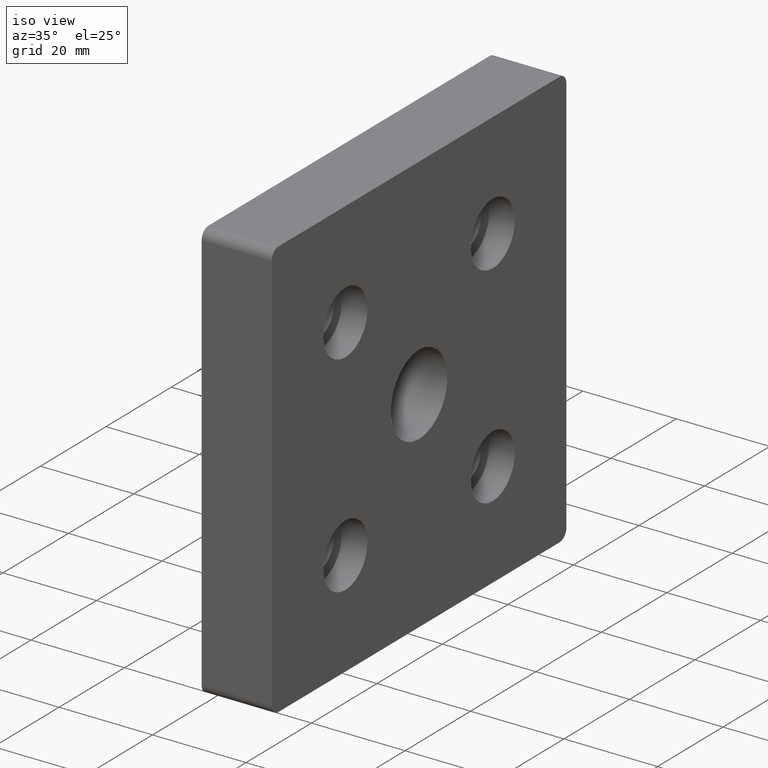
[diagram: clean part render]
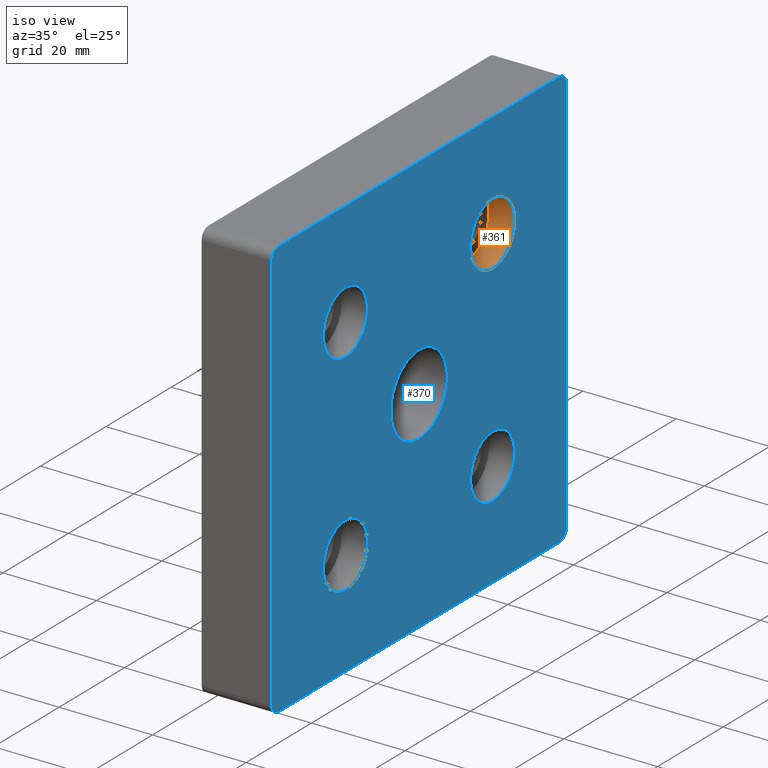
[diagram: same view with the hole feature highlighted: cylindrical wall and planar end face, labeled with their STEP entity ids]
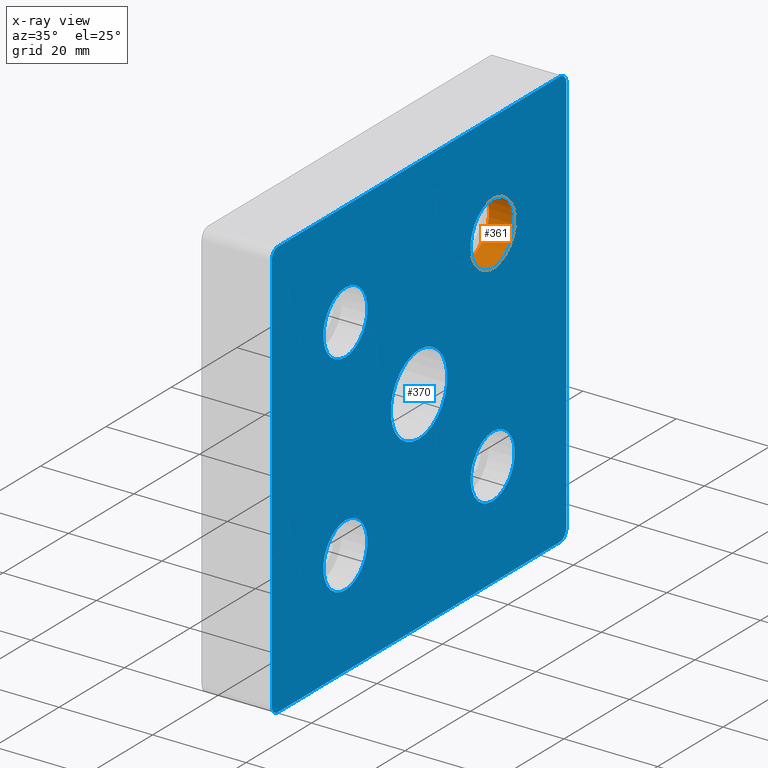
[diagram: x-ray of the same camera — body ghosted, the hole faces saturated]
A machine part, iso view. The highlighted faces form one hole feature of diameter 13.5 mm: the cylindrical wall (entity #361, orange) and its adjacent planar end face (entity #370, blue) — they share a circular edge in the B-rep.
The next image is the same camera in x-ray (body ghosted, the hole faces saturated) — the bore reads through the body.
Wall:
#25=FACE_BOUND('',#95,.T.);
#61=FACE_OUTER_BOUND('',#94,.T.);
#94=EDGE_LOOP('',(#302));
#95=EDGE_LOOP('',(#303));
#166=CIRCLE('',#403,6.75);
#168=CIRCLE('',#406,6.75);
#200=VERTEX_POINT('',#609);
#202=VERTEX_POINT('',#614);
#241=EDGE_CURVE('',#200,#200,#166,.T.);
#243=EDGE_CURVE('',#202,#202,#168,.T.);
#302=ORIENTED_EDGE('',*,*,#243,.F.);
#303=ORIENTED_EDGE('',*,*,#241,.F.);
#342=CYLINDRICAL_SURFACE('',#405,6.75);
#361=ADVANCED_FACE('',(#61,#25),#342,.F.);
#403=AXIS2_PLACEMENT_3D('',#610,#499,#500);
#405=AXIS2_PLACEMENT_3D('',#613,#503,#504);
#406=AXIS2_PLACEMENT_3D('',#615,#505,#506);
#499=DIRECTION('center_axis',(1.,0.,0.));
#500=DIRECTION('ref_axis',(0.,0.,-1.));
#503=DIRECTION('center_axis',(1.,0.,0.));
#504=DIRECTION('ref_axis',(0.,0.,-1.));
#505=DIRECTION('center_axis',(-1.,0.,0.));
#506=DIRECTION('ref_axis',(0.,0.,-1.));
#609=CARTESIAN_POINT('',(9.5,22.5,15.75));
#610=CARTESIAN_POINT('Origin',(9.5,22.5,22.5));
#613=CARTESIAN_POINT('Origin',(12.25,22.5,22.5));
#614=CARTESIAN_POINT('',(15.,22.5,15.75));
#615=CARTESIAN_POINT('Origin',(15.,22.5,22.5));
End face:
#33=FACE_BOUND('',#112,.T.);
#34=FACE_BOUND('',#113,.T.);
#35=FACE_BOUND('',#114,.T.);
#36=FACE_BOUND('',#115,.T.);
#37=FACE_BOUND('',#116,.T.);
#47=PLANE('',#421);
#70=FACE_OUTER_BOUND('',#111,.T.);
#111=EDGE_LOOP('',(#322,#323,#324,#325,#326,#327,#328,#329));
#112=EDGE_LOOP('',(#330));
#113=EDGE_LOOP('',(#331));
#114=EDGE_LOOP('',(#332));
#115=EDGE_LOOP('',(#333));
#116=EDGE_LOOP('',(#334));
#121=LINE('',#553,#137);
#127=LINE('',#583,#143);
#130=LINE('',#591,#146);
#132=LINE('',#636,#148);
#137=VECTOR('',#436,86.);
#143=VECTOR('',#466,86.);
#146=VECTOR('',#475,86.);
#148=VECTOR('',#535,86.);
#149=CIRCLE('',#374,2.);
#159=CIRCLE('',#387,2.);
#160=CIRCLE('',#390,2.);
#161=CIRCLE('',#393,2.);
#162=CIRCLE('',#395,8.647);
#165=CIRCLE('',#400,6.75);
#168=CIRCLE('',#406,6.75);
#171=CIRCLE('',#412,6.75);
#174=CIRCLE('',#418,6.75);
#175=VERTEX_POINT('',#540);
#176=VERTEX_POINT('',#541);
#180=VERTEX_POINT('',#551);
#191=VERTEX_POINT('',#577);
#192=VERTEX_POINT('',#581);
#193=VERTEX_POINT('',#585);
#194=VERTEX_POINT('',#589);
#195=VERTEX_POINT('',#593);
#196=VERTEX_POINT('',#597);
#199=VERTEX_POINT('',#605);
#202=VERTEX_POINT('',#614);
#205=VERTEX_POINT('',#623);
#208=VERTEX_POINT('',#632);
#209=EDGE_CURVE('',#175,#176,#149,.T.);
#215=EDGE_CURVE('',#175,#180,#121,.T.);
#227=EDGE_CURVE('',#191,#180,#159,.T.);
#230=EDGE_CURVE('',#191,#192,#127,.T.);
#231=EDGE_CURVE('',#193,#192,#160,.T.);
#234=EDGE_CURVE('',#193,#194,#130,.T.);
#235=EDGE_CURVE('',#195,#194,#161,.T.);
#237=EDGE_CURVE('',#196,#196,#162,.T.);
#240=EDGE_CURVE('',#199,#199,#165,.T.);
#243=EDGE_CURVE('',#202,#202,#168,.T.);
#246=EDGE_CURVE('',#205,#205,#171,.T.);
#249=EDGE_CURVE('',#208,#208,#174,.T.);
#250=EDGE_CURVE('',#195,#176,#132,.T.);
#322=ORIENTED_EDGE('',*,*,#209,.F.);
#323=ORIENTED_EDGE('',*,*,#215,.T.);
#324=ORIENTED_EDGE('',*,*,#227,.F.);
#325=ORIENTED_EDGE('',*,*,#230,.T.);
#326=ORIENTED_EDGE('',*,*,#231,.F.);
#327=ORIENTED_EDGE('',*,*,#234,.T.);
#328=ORIENTED_EDGE('',*,*,#235,.F.);
#329=ORIENTED_EDGE('',*,*,#250,.T.);
#330=ORIENTED_EDGE('',*,*,#237,.T.);
#331=ORIENTED_EDGE('',*,*,#240,.T.);
#332=ORIENTED_EDGE('',*,*,#243,.T.);
#333=ORIENTED_EDGE('',*,*,#246,.T.);
#334=ORIENTED_EDGE('',*,*,#249,.T.);
#370=ADVANCED_FACE('',(#70,#33,#34,#35,#36,#37),#47,.T.);
#374=AXIS2_PLACEMENT_3D('',#542,#426,#427);
#387=AXIS2_PLACEMENT_3D('',#578,#460,#461);
#390=AXIS2_PLACEMENT_3D('',#586,#469,#470);
#393=AXIS2_PLACEMENT_3D('',#594,#478,#479);
#395=AXIS2_PLACEMENT_3D('',#598,#483,#484);
#400=AXIS2_PLACEMENT_3D('',#606,#493,#494);
#406=AXIS2_PLACEMENT_3D('',#615,#505,#506);
#412=AXIS2_PLACEMENT_3D('',#624,#517,#518);
#418=AXIS2_PLACEMENT_3D('',#633,#529,#530);
#421=AXIS2_PLACEMENT_3D('',#637,#536,#537);
#426=DIRECTION('center_axis',(-1.,0.,0.));
#427=DIRECTION('ref_axis',(0.,-0.707106781186548,0.707106781186548));
#436=DIRECTION('',(0.,0.,-1.));
#460=DIRECTION('center_axis',(-1.,0.,0.));
#461=DIRECTION('ref_axis',(0.,-0.707106781186548,-0.707106781186548));
#466=DIRECTION('',(0.,1.,0.));
#469=DIRECTION('center_axis',(-1.,0.,0.));
#470=DIRECTION('ref_axis',(0.,0.707106781186548,-0.707106781186548));
#475=DIRECTION('',(0.,0.,1.));
#478=DIRECTION('center_axis',(-1.,0.,0.));
#479=DIRECTION('ref_axis',(0.,0.707106781186548,0.707106781186548));
#483=DIRECTION('center_axis',(-1.,0.,0.));
#484=DIRECTION('ref_axis',(0.,0.,-1.));
#493=DIRECTION('center_axis',(-1.,0.,0.));
#494=DIRECTION('ref_axis',(0.,0.,-1.));
#505=DIRECTION('center_axis',(-1.,0.,0.));
#506=DIRECTION('ref_axis',(0.,0.,-1.));
#517=DIRECTION('center_axis',(-1.,0.,0.));
#518=DIRECTION('ref_axis',(0.,0.,-1.));
#529=DIRECTION('center_axis',(-1.,0.,0.));
#530=DIRECTION('ref_axis',(0.,0.,-1.));
#535=DIRECTION('',(0.,-1.,0.));
#536=DIRECTION('center_axis',(1.,0.,0.));
#537=DIRECTION('ref_axis',(0.,0.,-1.));
#540=CARTESIAN_POINT('',(15.,-45.,43.));
#541=CARTESIAN_POINT('',(15.,-43.,45.));
#542=CARTESIAN_POINT('Origin',(15.,-43.,43.));
#551=CARTESIAN_POINT('',(15.,-45.,-43.));
#553=CARTESIAN_POINT('',(15.,-45.,45.));
#577=CARTESIAN_POINT('',(15.,-43.,-45.));
#578=CARTESIAN_POINT('Origin',(15.,-43.,-43.));
#581=CARTESIAN_POINT('',(15.,43.,-45.));
#583=CARTESIAN_POINT('',(15.,-45.,-45.));
#585=CARTESIAN_POINT('',(15.,45.,-43.));
#586=CARTESIAN_POINT('Origin',(15.,43.,-43.));
#589=CARTESIAN_POINT('',(15.,45.,43.));
#591=CARTESIAN_POINT('',(15.,45.,-45.));
#593=CARTESIAN_POINT('',(15.,43.,45.));
#594=CARTESIAN_POINT('Origin',(15.,43.,43.));
#597=CARTESIAN_POINT('',(15.,0.,-8.647));
#598=CARTESIAN_POINT('Origin',(15.,0.,0.));
#605=CARTESIAN_POINT('',(15.,-22.5,-29.25));
#606=CARTESIAN_POINT('Origin',(15.,-22.5,-22.5));
#614=CARTESIAN_POINT('',(15.,22.5,15.75));
#615=CARTESIAN_POINT('Origin',(15.,22.5,22.5));
#623=CARTESIAN_POINT('',(15.,22.5,-29.25));
#624=CARTESIAN_POINT('Origin',(15.,22.5,-22.5));
#632=CARTESIAN_POINT('',(15.,-22.5,15.75));
#633=CARTESIAN_POINT('Origin',(15.,-22.5,22.5));
#636=CARTESIAN_POINT('',(15.,45.,45.));
#637=CARTESIAN_POINT('Origin',(15.,0.,0.));